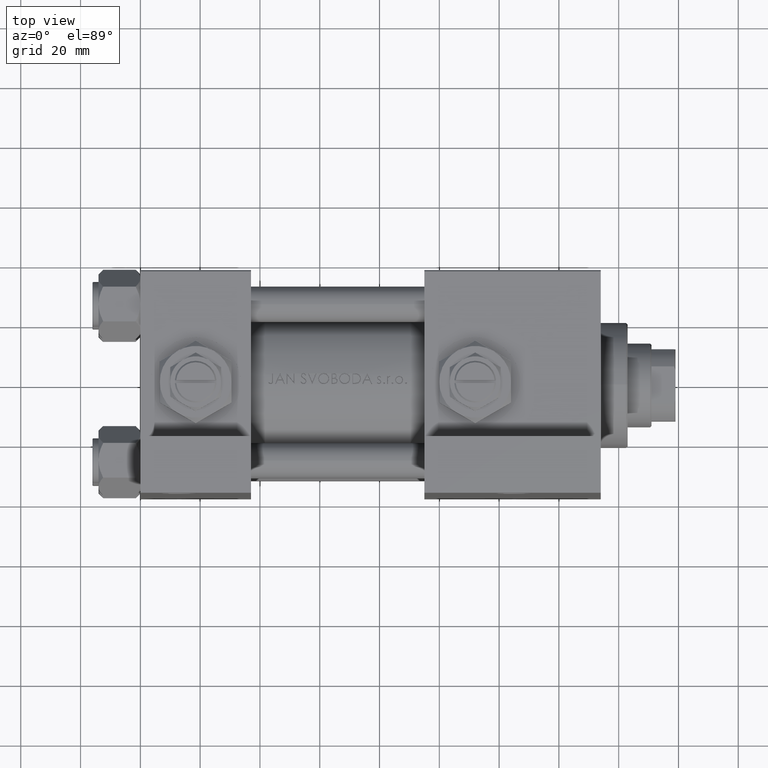
[diagram: clean part render]
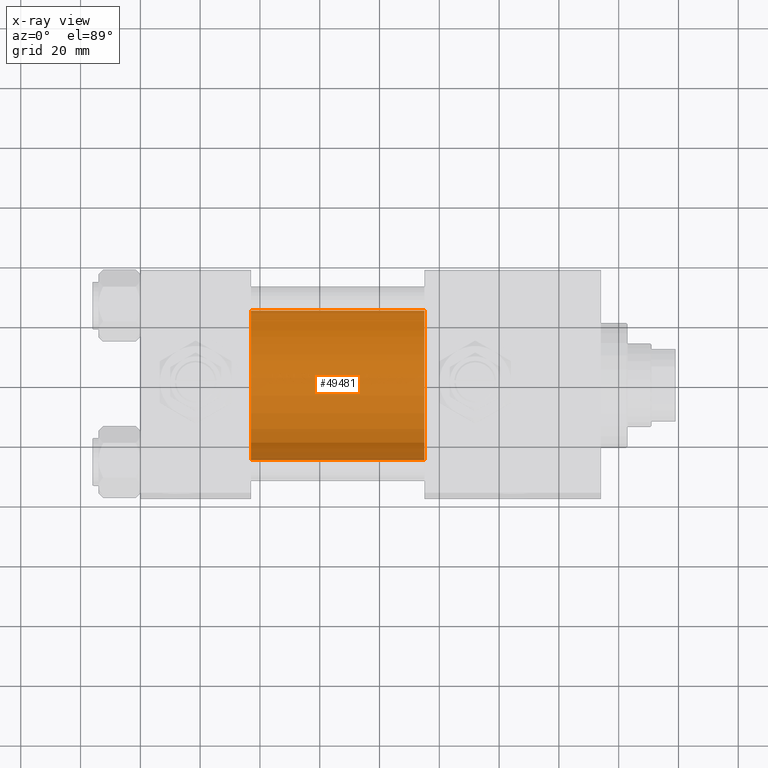
[diagram: x-ray — body ghosted, one internal face saturated and labeled with its STEP entity id]
A machine part, top view, then the same camera in x-ray: the body is ghosted and one INTERNAL B-rep face — a face not visible from any outside direction — is saturated and labeled: STEP entity #49481.
In plain terms, the highlighted cylindrical surface (partial cylindrical patch) has radius 25 mm, axis along (-1, -0, 0).
Its self-contained STEP definition (entity closure, byte-faithful):
#527 = AXIS2_PLACEMENT_3D ( 'NONE', #47392, #1757, #35876 ) ;
#1757 = DIRECTION ( 'NONE',  ( 1.000000000000000000, 0.000000000000000000, 0.000000000000000000 ) ) ;
#4141 = DIRECTION ( 'NONE',  ( 1.000000000000000000, 0.000000000000000000, 0.000000000000000000 ) ) ;
#8586 = VERTEX_POINT ( 'NONE', #15525 ) ;
#12071 = CARTESIAN_POINT ( 'NONE',  ( 95.00000000000000000, 0.000000000000000000, -0.5000000000000004441 ) ) ;
#13057 = ORIENTED_EDGE ( 'NONE', *, *, #43854, .T. ) ;
#15525 = CARTESIAN_POINT ( 'NONE',  ( 37.00000000000000000, 3.061616997868382254E-15, -25.50000000000000355 ) ) ;
#16789 = CARTESIAN_POINT ( 'NONE',  ( 95.00000000000000000, 3.061616997868382254E-15, -25.50000000000000355 ) ) ;
#17670 = AXIS2_PLACEMENT_3D ( 'NONE', #12071, #30610, #46405 ) ;
#21759 = LINE ( 'NONE', #22498, #27840 ) ;
#22160 = CIRCLE ( 'NONE', #527, 25.00000000000000000 ) ;
#22252 = DIRECTION ( 'NONE',  ( -1.000000000000000000, -0.000000000000000000, -0.000000000000000000 ) ) ;
#22365 = ORIENTED_EDGE ( 'NONE', *, *, #24584, .F. ) ;
#22498 = CARTESIAN_POINT ( 'NONE',  ( 95.00000000000000000, 0.000000000000000000, 24.50000000000000000 ) ) ;
#22833 = ORIENTED_EDGE ( 'NONE', *, *, #22842, .T. ) ;
#22842 = EDGE_CURVE ( 'NONE', #23301, #49097, #42112, .T. ) ;
#23091 = FACE_OUTER_BOUND ( 'NONE', #48554, .T. ) ;
#23301 = VERTEX_POINT ( 'NONE', #23883 ) ;
#23697 = AXIS2_PLACEMENT_3D ( 'NONE', #24191, #4141, #38754 ) ;
#23883 = CARTESIAN_POINT ( 'NONE',  ( 95.00000000000000000, 3.061616997868382254E-15, -25.50000000000000355 ) ) ;
#24191 = CARTESIAN_POINT ( 'NONE',  ( 95.00000000000000000, 0.000000000000000000, -0.5000000000000004441 ) ) ;
#24584 = EDGE_CURVE ( 'NONE', #8586, #31470, #22160, .T. ) ;
#27840 = VECTOR ( 'NONE', #22252, 1000.000000000000000 ) ;
#30610 = DIRECTION ( 'NONE',  ( -1.000000000000000000, -0.000000000000000000, -0.000000000000000000 ) ) ;
#31470 = VERTEX_POINT ( 'NONE', #44570 ) ;
#32811 = DIRECTION ( 'NONE',  ( -1.000000000000000000, -0.000000000000000000, -0.000000000000000000 ) ) ;
#35876 = DIRECTION ( 'NONE',  ( 0.000000000000000000, 0.000000000000000000, -1.000000000000000000 ) ) ;
#38754 = DIRECTION ( 'NONE',  ( 0.000000000000000000, 0.000000000000000000, -1.000000000000000000 ) ) ;
#40337 = LINE ( 'NONE', #16789, #44701 ) ;
#42112 = CIRCLE ( 'NONE', #23697, 25.00000000000000000 ) ;
#42413 = CYLINDRICAL_SURFACE ( 'NONE', #17670, 25.00000000000000000 ) ;
#43854 = EDGE_CURVE ( 'NONE', #49097, #31470, #21759, .T. ) ;
#44570 = CARTESIAN_POINT ( 'NONE',  ( 37.00000000000000000, 0.000000000000000000, 24.50000000000000000 ) ) ;
#44691 = EDGE_CURVE ( 'NONE', #23301, #8586, #40337, .T. ) ;
#44701 = VECTOR ( 'NONE', #32811, 1000.000000000000000 ) ;
#46265 = CARTESIAN_POINT ( 'NONE',  ( 95.00000000000000000, 0.000000000000000000, 24.50000000000000000 ) ) ;
#46405 = DIRECTION ( 'NONE',  ( 0.000000000000000000, 0.000000000000000000, 1.000000000000000000 ) ) ;
#47392 = CARTESIAN_POINT ( 'NONE',  ( 37.00000000000000000, 0.000000000000000000, -0.5000000000000004441 ) ) ;
#48554 = EDGE_LOOP ( 'NONE', ( #49575, #22833, #13057, #22365 ) ) ;
#49097 = VERTEX_POINT ( 'NONE', #46265 ) ;
#49481 = ADVANCED_FACE ( 'NONE', ( #23091 ), #42413, .F. ) ;
#49575 = ORIENTED_EDGE ( 'NONE', *, *, #44691, .F. ) ;